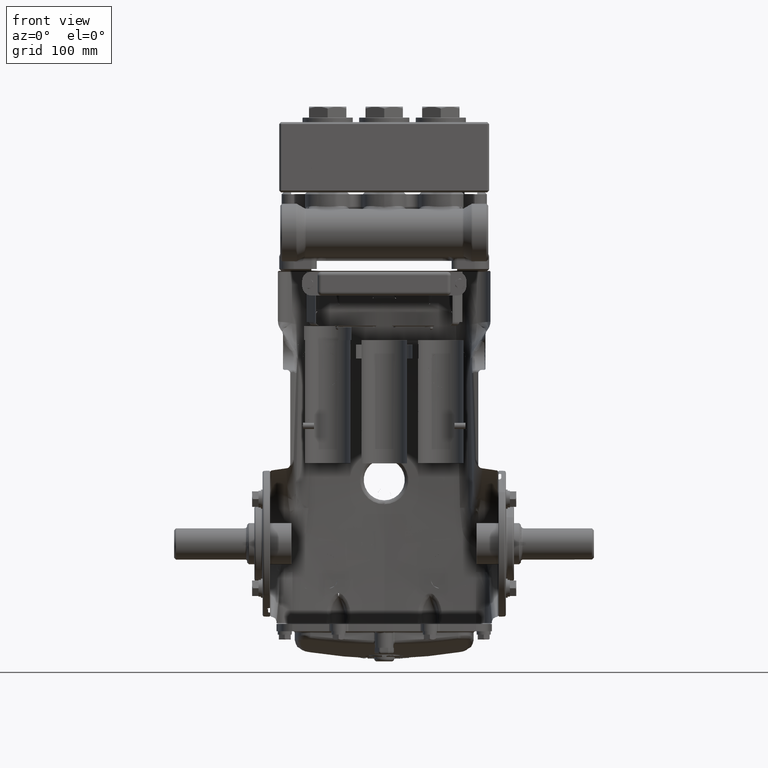
[diagram: clean part render]
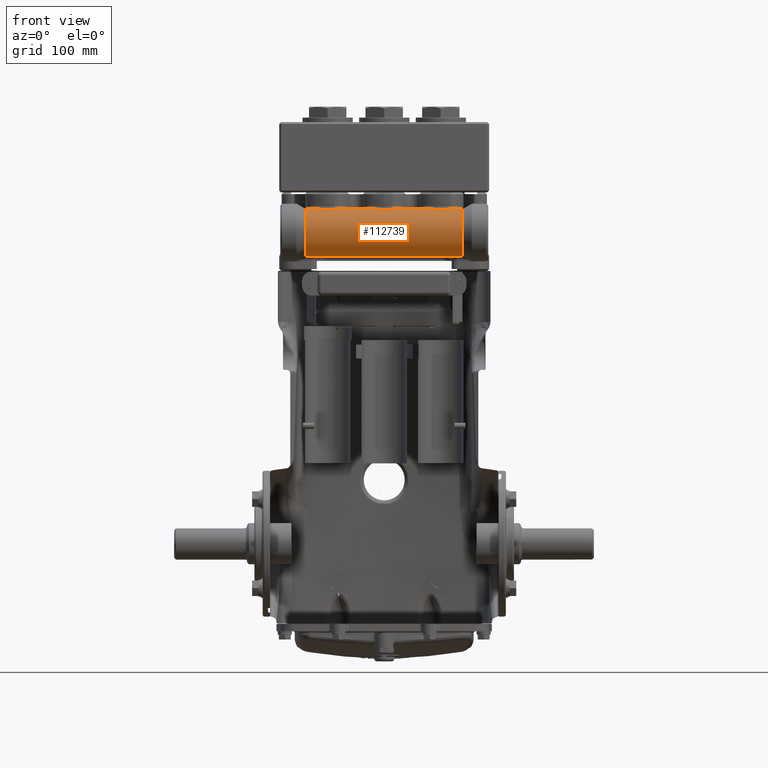
[diagram: same view with one face highlighted and labeled with its STEP entity id]
A machine part, front view. The second image highlights one B-rep face of the part: STEP entity #112739.
In plain terms, the highlighted cylindrical surface (edge-blend (fillet) strip) has radius 26 mm, axis along (1, 0, 0).
Its self-contained STEP definition (entity closure, byte-faithful):
#1110 = CARTESIAN_POINT ( 'NONE',  ( -1.224750035961767791, -2.438224173086714242, 14.28600753753522312 ) ) ;
#1690 = CARTESIAN_POINT ( 'NONE',  ( -1.392745476830968832, -2.529004350186878636, 14.33811303274630156 ) ) ;
#2241 = CARTESIAN_POINT ( 'NONE',  ( -1.762139958718526689, -2.994705336898281889, 14.44889535709846484 ) ) ;
#2495 = CARTESIAN_POINT ( 'NONE',  ( 0.5488131802553992689, -3.072909755404113596, 14.44567953289339002 ) ) ;
#2801 = CARTESIAN_POINT ( 'NONE',  ( -2.523119383381955849, -3.201164740332664849, 14.42724901606461430 ) ) ;
#3054 = CARTESIAN_POINT ( 'NONE',  ( 0.9632434997090216777, -2.696701361509685757, 14.40543878414368528 ) ) ;
#3367 = CARTESIAN_POINT ( 'NONE',  ( -3.164982382948822615, -2.961115927815201498, 14.44843370206043609 ) ) ;
#3617 = CARTESIAN_POINT ( 'NONE',  ( 1.102829510605237928, -2.473063282394071472, 14.30748209213322752 ) ) ;
#3702 = EDGE_CURVE ( 'NONE', #91047, #35622, #58872, .T. ) ;
#4179 = CARTESIAN_POINT ( 'NONE',  ( 1.298563175793137736, -2.452629944804456841, 14.29512303758777136 ) ) ;
#4742 = CARTESIAN_POINT ( 'NONE',  ( 1.413793404547088350, -2.574525015069976330, 14.35981785241711783 ) ) ;
#5311 = CARTESIAN_POINT ( 'NONE',  ( 1.931510046685219084, -3.092974234455978078, 14.44397878168943272 ) ) ;
#5494 = AXIS2_PLACEMENT_3D ( 'NONE', #33861, #69046, #104352 ) ;
#5879 = CARTESIAN_POINT ( 'NONE',  ( 2.779356107778421681, -3.156946018234576989, 14.43551792511931353 ) ) ;
#6451 = CARTESIAN_POINT ( 'NONE',  ( 3.347962723525526929, -2.778498657831000251, 14.42693520110794481 ) ) ;
#6467 = CARTESIAN_POINT ( 'NONE',  ( 0.0000000000000000000, -3.203909856095580100, 14.42667060802847701 ) ) ;
#7035 = CARTESIAN_POINT ( 'NONE',  ( -0.7493215939297026562, -2.940726511521727371, 14.44761886847634358 ) ) ;
#7595 = CARTESIAN_POINT ( 'NONE',  ( -1.023947578147561321, -2.581915927152862889, 14.36312639602644659 ) ) ;
#9752 = CARTESIAN_POINT ( 'NONE',  ( -1.170736290824243353, -2.443966577119395467, 14.28967860514842414 ) ) ;
#10313 = CARTESIAN_POINT ( 'NONE',  ( -1.367744346045516313, -2.497449160356584930, 14.32138789086402397 ) ) ;
#10894 = CARTESIAN_POINT ( 'NONE',  ( -1.613589198999290764, -2.869963022498621008, 14.44193352848027345 ) ) ;
#11148 = CARTESIAN_POINT ( 'NONE',  ( 0.3470717326051955820, -3.156985305777794348, 14.43563529904559317 ) ) ;
#11452 = CARTESIAN_POINT ( 'NONE',  ( -2.306175385157535729, -3.199585951982961696, 14.42770270754278172 ) ) ;
#11707 = CARTESIAN_POINT ( 'NONE',  ( 0.8884793090866481835, -2.802156249457780746, 14.43165898778683598 ) ) ;
#12009 = CARTESIAN_POINT ( 'NONE',  ( -3.057777759757153824, -3.035973287580524094, 14.44816067551082384 ) ) ;
#12254 = CARTESIAN_POINT ( 'NONE',  ( 1.057505240782311562, -2.514124458868172152, 14.33051050874809107 ) ) ;
#12591 = ORIENTED_EDGE ( 'NONE', *, *, #38957, .T. ) ;
#12817 = CARTESIAN_POINT ( 'NONE',  ( 1.257299938182209420, -2.441338663756227767, 14.28800497887823262 ) ) ;
#13380 = CARTESIAN_POINT ( 'NONE',  ( 1.402068782616597620, -2.546632716921555684, 14.34680629852294587 ) ) ;
#13411 = DIRECTION ( 'NONE',  ( 0.0000000000000000000, 0.0000000000000000000, -1.000000000000000000 ) ) ;
#13944 = CARTESIAN_POINT ( 'NONE',  ( 1.816720217836775175, -3.030578863915343923, 14.44816442550044222 ) ) ;
#14521 = CARTESIAN_POINT ( 'NONE',  ( 2.588266881271676922, -3.194987343205331065, 14.42852066006803646 ) ) ;
#15082 = CARTESIAN_POINT ( 'NONE',  ( 3.231684298675554068, -2.905147404648150022, 14.44550764316274538 ) ) ;
#15675 = CARTESIAN_POINT ( 'NONE',  ( -0.6063617544307126073, -3.041158706254087463, 14.44770828912713334 ) ) ;
#16248 = CARTESIAN_POINT ( 'NONE',  ( -0.9947355276323851525, -2.642039462858742915, 14.38728542416328082 ) ) ;
#17890 = CARTESIAN_POINT ( 'NONE',  ( -3.372829644924324022, -2.743333000702158131, 14.41812391062550347 ) ) ;
#18384 = CARTESIAN_POINT ( 'NONE',  ( -1.130177275315354279, -2.457779076810858943, 14.29829932257568537 ) ) ;
#18960 = CARTESIAN_POINT ( 'NONE',  ( -1.327245032152549520, -2.466298467446557119, 14.30346230889196413 ) ) ;
#19530 = CARTESIAN_POINT ( 'NONE',  ( -1.456172790164167674, -2.666855775660966543, 14.39907039445945003 ) ) ;
#19795 = CARTESIAN_POINT ( 'NONE',  ( 0.08792247874438786914, -3.201557195373263998, 14.42717671050553641 ) ) ;
#20102 = CARTESIAN_POINT ( 'NONE',  ( -2.051996479377665494, -3.141049179896874044, 14.43800536758448594 ) ) ;
#20236 = DIRECTION ( 'NONE',  ( 0.0000000000000000000, -1.067522139062649685E-15, 1.000000000000000000 ) ) ;
#20359 = CARTESIAN_POINT ( 'NONE',  ( 0.7987899432283530610, -2.896987876359246261, 14.44449545914397426 ) ) ;
#20661 = CARTESIAN_POINT ( 'NONE',  ( -2.902887244773027398, -3.114048333381713274, 14.44164623615207077 ) ) ;
#20916 = CARTESIAN_POINT ( 'NONE',  ( 1.033856893815096933, -2.558594652386579682, 14.35249351502407222 ) ) ;
#21463 = CARTESIAN_POINT ( 'NONE',  ( 1.203061127379871253, -2.438896899008384356, 14.28644004180351423 ) ) ;
#22022 = CARTESIAN_POINT ( 'NONE',  ( 1.387241018392690206, -2.520699608530673430, 14.33384351126877476 ) ) ;
#22062 = CYLINDRICAL_SURFACE ( 'NONE', #43593, 1.023622047244095334 ) ;
#22606 = CARTESIAN_POINT ( 'NONE',  ( 1.709720017371413103, -2.956383475123208093, 14.44851367767017258 ) ) ;
#23172 = CARTESIAN_POINT ( 'NONE',  ( 2.501245188955166121, -3.202464847456474750, 14.42697536519890278 ) ) ;
#23228 = CIRCLE ( 'NONE', #87836, 1.023622047244095334 ) ;
#23296 = CARTESIAN_POINT ( 'NONE',  ( -3.372829644924324022, -2.992125984251973847, 13.42519685039370003 ) ) ;
#23746 = CARTESIAN_POINT ( 'NONE',  ( 3.129985374719591817, -2.987431697198415836, 14.44889272411700176 ) ) ;
#24306 = CARTESIAN_POINT ( 'NONE',  ( 3.372829644924324022, -2.992125984251974735, 14.44881889763779625 ) ) ;
#24327 = CARTESIAN_POINT ( 'NONE',  ( -0.5291050891334558859, -3.082812570212660752, 14.44483663170348287 ) ) ;
#24891 = EDGE_CURVE ( 'NONE', #58924, #91047, #103778, .T. ) ;
#24892 = CARTESIAN_POINT ( 'NONE',  ( -0.9398251910465786896, -2.732606826391485555, 14.41555020304502754 ) ) ;
#27058 = CARTESIAN_POINT ( 'NONE',  ( -1.086264197188575586, -2.485453203045027148, 14.31465512880557966 ) ) ;
#27621 = CARTESIAN_POINT ( 'NONE',  ( -1.288566711587185720, -2.449096935547703247, 14.29291377502000060 ) ) ;
#28202 = CARTESIAN_POINT ( 'NONE',  ( -1.407902867825798321, -2.560562375778543398, 14.35341081832662447 ) ) ;
#28543 = DIRECTION ( 'NONE',  ( 1.000000000000000000, -0.0000000000000000000, -0.0000000000000000000 ) ) ;
#28768 = CARTESIAN_POINT ( 'NONE',  ( -1.892550977865406381, -3.073976780054737290, 14.44576598726254701 ) ) ;
#29026 = CARTESIAN_POINT ( 'NONE',  ( 0.6979019443465449557, -2.981678378771960514, 14.44913010806025255 ) ) ;
#29324 = CARTESIAN_POINT ( 'NONE',  ( -2.695307960543031012, -3.177820153362491240, 14.43189044488762107 ) ) ;
#29579 = CARTESIAN_POINT ( 'NONE',  ( 1.017565976525985683, -2.595848302988955858, 14.36905391292039269 ) ) ;
#29881 = CARTESIAN_POINT ( 'NONE',  ( -3.320910558566367854, -2.811876020899895412, 14.43333182254591840 ) ) ;
#30135 = CARTESIAN_POINT ( 'NONE',  ( 1.160323562658088781, -2.446662567767138974, 14.29138864007830989 ) ) ;
#30236 = EDGE_CURVE ( 'NONE', #68037, #68107, #41797, .T. ) ;
#30500 = EDGE_CURVE ( 'NONE', #58924, #106629, #61249, .T. ) ;
#30689 = CARTESIAN_POINT ( 'NONE',  ( 1.352656280618820039, -2.483782230740774644, 14.31370693440212882 ) ) ;
#31252 = CARTESIAN_POINT ( 'NONE',  ( 1.583879470559962366, -2.838512698983674198, 14.43780017292151996 ) ) ;
#31832 = CARTESIAN_POINT ( 'NONE',  ( 2.178004310445090130, -3.176032197834753656, 14.43219460821944722 ) ) ;
#32397 = CARTESIAN_POINT ( 'NONE',  ( 3.020278356798601571, -3.057673702080660139, 14.44690566706256973 ) ) ;
#32982 = CARTESIAN_POINT ( 'NONE',  ( -0.2188524925182083469, -3.185075906583179961, 14.43051421957495783 ) ) ;
#33551 = CARTESIAN_POINT ( 'NONE',  ( -0.8602442029488021058, -2.835027223197791102, 14.43717998284209614 ) ) ;
#33861 = CARTESIAN_POINT ( 'NONE',  ( 3.372829644924324022, -2.992125984251973847, 13.42519685039370003 ) ) ;
#34120 = CARTESIAN_POINT ( 'NONE',  ( -1.045962652270114868, -2.530908640154816869, 14.33925172178862439 ) ) ;
#35622 = VERTEX_POINT ( 'NONE', #24306 ) ;
#36284 = CARTESIAN_POINT ( 'NONE',  ( -1.235597776719379981, -2.438706113112504514, 14.28631878439947478 ) ) ;
#36855 = CARTESIAN_POINT ( 'NONE',  ( -1.399879171403583422, -2.542140314129480938, 14.34461996809992534 ) ) ;
#37426 = CARTESIAN_POINT ( 'NONE',  ( -1.780045196653176509, -3.006991268781792126, 14.44877894626585224 ) ) ;
#37680 = CARTESIAN_POINT ( 'NONE',  ( 0.5874141041629356019, -3.052095054381414041, 14.44711398675610781 ) ) ;
#37984 = CARTESIAN_POINT ( 'NONE',  ( -2.566635660627479609, -3.197423503268010503, 14.42802219558367050 ) ) ;
#38243 = CARTESIAN_POINT ( 'NONE',  ( 0.9742156385260171136, -2.678575255638935282, 14.39980494436041702 ) ) ;
#38546 = CARTESIAN_POINT ( 'NONE',  ( -3.182063912697919772, -2.947432021988487971, 14.44794015554316680 ) ) ;
#38797 = CARTESIAN_POINT ( 'NONE',  ( 1.111606127074344696, -2.467529381258308341, 14.30419227048965958 ) ) ;
#38957 = EDGE_CURVE ( 'NONE', #106629, #108750, #23228, .T. ) ;
#39359 = CARTESIAN_POINT ( 'NONE',  ( 1.317919109970155045, -2.461230961520086691, 14.30039855433632212 ) ) ;
#39946 = CARTESIAN_POINT ( 'NONE',  ( 1.417883865505817464, -2.583795321968324732, 14.36390266582180608 ) ) ;
#40516 = CARTESIAN_POINT ( 'NONE',  ( 2.011233665830897355, -3.126508467930788626, 14.44009996950615182 ) ) ;
#40518 = CIRCLE ( 'NONE', #5494, 1.023622047244095334 ) ;
#41090 = CARTESIAN_POINT ( 'NONE',  ( 2.820882793528002974, -3.144257890370580455, 14.43756550664822669 ) ) ;
#41651 = CARTESIAN_POINT ( 'NONE',  ( 3.372829644924324022, -2.743333000702158131, 14.41812391062550347 ) ) ;
#41665 = CARTESIAN_POINT ( 'NONE',  ( -0.04406172151318323016, -3.203909856095580988, 14.42667060802848233 ) ) ;
#41797 = LINE ( 'NONE', #76943, #112921 ) ;
#42231 = CARTESIAN_POINT ( 'NONE',  ( -0.7661279068560705729, -2.926481476910151702, 14.44681894883788154 ) ) ;
#42803 = CARTESIAN_POINT ( 'NONE',  ( -1.029944212129106917, -2.567929744938093783, 14.35680088135081967 ) ) ;
#43406 = ORIENTED_EDGE ( 'NONE', *, *, #30236, .T. ) ;
#43593 = AXIS2_PLACEMENT_3D ( 'NONE', #57241, #92566, #13411 ) ;
#44953 = CARTESIAN_POINT ( 'NONE',  ( -1.192130817914867080, -2.440067443322223806, 14.28719383839206891 ) ) ;
#45522 = CARTESIAN_POINT ( 'NONE',  ( -1.374771894506268577, -2.504944114283792711, 14.32549424993423237 ) ) ;
#46090 = CARTESIAN_POINT ( 'NONE',  ( -1.676498238489965376, -2.928886312410759807, 14.44729176071087551 ) ) ;
#46343 = CARTESIAN_POINT ( 'NONE',  ( 0.4296336755646519845, -3.129291744169332201, 14.44027495984443377 ) ) ;
#46649 = CARTESIAN_POINT ( 'NONE',  ( -2.392421147142306914, -3.206041762892475777, 14.42622166885597323 ) ) ;
#46897 = CARTESIAN_POINT ( 'NONE',  ( 0.9273834632848217963, -2.750363958070084713, 14.42001659684805581 ) ) ;
#47199 = CARTESIAN_POINT ( 'NONE',  ( -3.112166531739868347, -2.999996381871997908, 14.44885891471048822 ) ) ;
#47370 = CARTESIAN_POINT ( 'NONE',  ( 0.0000000000000000000, -3.203909856095580100, 14.42667060802847701 ) ) ;
#47448 = CARTESIAN_POINT ( 'NONE',  ( 1.078542374105145418, -2.492272238273208984, 14.31851503217564492 ) ) ;
#48012 = CARTESIAN_POINT ( 'NONE',  ( 1.267969249578819735, -2.443456643992555133, 14.28935838857905694 ) ) ;
#48579 = CARTESIAN_POINT ( 'NONE',  ( 1.406052413757419961, -2.555859440886615097, 14.35120966307928292 ) ) ;
#49142 = CARTESIAN_POINT ( 'NONE',  ( 1.835536608594182217, -3.041902752933232534, 14.44766400095575420 ) ) ;
#49185 = EDGE_CURVE ( 'NONE', #108750, #68037, #102548, .T. ) ;
#49715 = CARTESIAN_POINT ( 'NONE',  ( 2.652788214902094488, -3.186013505273903590, 14.43030725947455117 ) ) ;
#50283 = CARTESIAN_POINT ( 'NONE',  ( 3.262772052194764072, -2.875200499202896776, 14.44262232791567691 ) ) ;
#50864 = CARTESIAN_POINT ( 'NONE',  ( -0.6621363260856938382, -3.006746581080935066, 14.44897189990721387 ) ) ;
#50874 = CARTESIAN_POINT ( 'NONE',  ( -3.372829644924324022, -2.992125984251974735, 14.44881889763779625 ) ) ;
#51437 = CARTESIAN_POINT ( 'NONE',  ( -1.004283197333284416, -2.623629684095146075, 14.38039987098826700 ) ) ;
#52088 = CARTESIAN_POINT ( 'NONE',  ( -3.372829644924324022, -2.992125984251973847, 12.40157480314960736 ) ) ;
#52689 = AXIS2_PLACEMENT_3D ( 'NONE', #64086, #99383, #20236 ) ;
#53428 = ORIENTED_EDGE ( 'NONE', *, *, #30500, .T. ) ;
#53572 = CARTESIAN_POINT ( 'NONE',  ( -1.140056622472941150, -2.453545766557934993, 14.29568516412857093 ) ) ;
#54146 = CARTESIAN_POINT ( 'NONE',  ( -1.344562920260350181, -2.477553737868745110, 14.31010373604497410 ) ) ;
#54707 = CARTESIAN_POINT ( 'NONE',  ( -1.500622986820208560, -2.738038971074281847, 14.41912019942171419 ) ) ;
#54962 = CARTESIAN_POINT ( 'NONE',  ( 0.1752452786362012904, -3.192164113055663499, 14.42909416550425306 ) ) ;
#55265 = CARTESIAN_POINT ( 'NONE',  ( -2.135296593774373530, -3.165805088541008061, 14.43405500664196062 ) ) ;
#55527 = CARTESIAN_POINT ( 'NONE',  ( 0.8145691455730238451, -2.881812812228580878, 14.44297877499861471 ) ) ;
#55833 = CARTESIAN_POINT ( 'NONE',  ( -2.942878641965528175, -3.096695082740985594, 14.44365191224603073 ) ) ;
#56085 = CARTESIAN_POINT ( 'NONE',  ( 1.035689114228423691, -2.553884803707387352, 14.35027670719249393 ) ) ;
#56642 = CARTESIAN_POINT ( 'NONE',  ( 1.224750035961767791, -2.438224173086714242, 14.28600753753522312 ) ) ;
#57207 = CARTESIAN_POINT ( 'NONE',  ( 1.392745476830968832, -2.529004350186878636, 14.33811303274630156 ) ) ;
#57241 = CARTESIAN_POINT ( 'NONE',  ( -4.409448818897637956, -2.992125984251973847, 13.42519685039370003 ) ) ;
#57772 = CARTESIAN_POINT ( 'NONE',  ( 1.762139958718526689, -2.994705336898281889, 14.44889535709846484 ) ) ;
#57809 = EDGE_CURVE ( 'NONE', #35622, #68107, #40518, .T. ) ;
#58328 = CARTESIAN_POINT ( 'NONE',  ( 2.523119383381955849, -3.201164740332664849, 14.42724901606461430 ) ) ;
#58462 = DIRECTION ( 'NONE',  ( 1.000000000000000000, 0.0000000000000000000, 0.0000000000000000000 ) ) ;
#58872 = CIRCLE ( 'NONE', #108768, 1.023622047244095334 ) ;
#58900 = CARTESIAN_POINT ( 'NONE',  ( 3.164982382948822615, -2.961115927815201498, 14.44843370206043609 ) ) ;
#58924 = VERTEX_POINT ( 'NONE', #47370 ) ;
#59497 = CARTESIAN_POINT ( 'NONE',  ( -0.5488131802553992689, -3.072909755404113596, 14.44567953289339002 ) ) ;
#60070 = CARTESIAN_POINT ( 'NONE',  ( -0.9632434997090216777, -2.696701361509685757, 14.40543878414368528 ) ) ;
#61249 = B_SPLINE_CURVE_WITH_KNOTS ( 'NONE', 3,
 ( #6467, #41665, #76812, #112173, #32982, #68167, #103467, #24327, #59497, #94815, #15675, #50864, #86149, #7035, #42231, #77377, #112740, #33551, #68733, #104040, #24892, #60070, #95391, #16248, #51437, #86716, #7595, #42803, #77963, #113317, #34120, #69303, #104616, #27058, #62232, #97544, #18384, #53572, #88886, #9752, #44953, #80119, #1110, #36284, #71450, #106771, #27621, #62803, #98123, #18960, #54146, #89466, #10313, #45522, #80712, #1690, #36855, #72018, #107339, #28202, #63392, #98685, #19530, #54707, #90038, #10894, #46090, #81284, #2241, #37426, #72590, #107907, #28768, #63957, #99250, #20102, #55265, #90602, #11452, #46649, #81850, #2801, #37984, #73146, #108471, #29324, #64505, #99817, #20661, #55833, #91164, #12009, #47199, #82418, #3367, #38546, #73690, #109019, #29881, #65062, #100378 ),
 .UNSPECIFIED., .F., .F.,
 ( 4, 2, 2, 2, 2, 2, 2, 2, 2, 2, 2, 2, 2, 1, 2, 2, 2, 2, 2, 2, 2, 2, 2, 2, 2, 2, 2, 2, 2, 2, 2, 2, 2, 2, 2, 2, 2, 2, 2, 2, 2, 2, 2, 2, 2, 2, 2, 2, 2, 2, 4 ),
 ( 3.529215890205205369E-29, 0.003345855121714097144, 0.006691710243428194288, 0.01338342048685639378, 0.01505634804771344842, 0.01672927560857050480, 0.02007513073028458633, 0.02174805829114161149, 0.02342098585199863664, 0.02676684097371268001, 0.02843976853456969475, 0.03011269609542670256, 0.03178562365628370689, 0.03262208743671219519, 0.03304031932692642198, 0.03345855121714064878, 0.03513147877799732005, 0.03596794255842567650, 0.03680440633885402602, 0.03764087011928238247, 0.03847733389971073198, 0.03931379768013908149, 0.04015026146056743100, 0.04098672524099578052, 0.04182318902142413697, 0.04265965280185248648, 0.04349611658228084293, 0.04433258036270919245, 0.04516904414313754890, 0.04558727603335171324, 0.04600550792356589147, 0.04684197170399431037, 0.05353368194742112729, 0.05687953706913453922, 0.06022539219084793727, 0.06189831975170464323, 0.06357124731256136307, 0.06691710243427477500, 0.07026295755598820081, 0.07360881267770161274, 0.08030052292112842272, 0.08197345048198513562, 0.08364637804284186240, 0.08699223316455532984, 0.09033808828626879728, 0.09368394340798225084, 0.09702979852969571828, 0.09870272609055248669, 0.1003756536514092412, 0.1037215087731227919, 0.1070673638948363149 ),
 .UNSPECIFIED. ) ;
#62232 = CARTESIAN_POINT ( 'NONE',  ( -1.102829510605237928, -2.473063282394071472, 14.30748209213322752 ) ) ;
#62803 = CARTESIAN_POINT ( 'NONE',  ( -1.298563175793137736, -2.452629944804456841, 14.29512303758777136 ) ) ;
#63392 = CARTESIAN_POINT ( 'NONE',  ( -1.413793404547088350, -2.574525015069976330, 14.35981785241711783 ) ) ;
#63656 = CARTESIAN_POINT ( 'NONE',  ( 0.0000000000000000000, -3.203909856095580100, 14.42667060802847701 ) ) ;
#63730 = DIRECTION ( 'NONE',  ( 0.0000000000000000000, 3.202566417187948937E-14, 1.000000000000000000 ) ) ;
#63957 = CARTESIAN_POINT ( 'NONE',  ( -1.931510046685219084, -3.092974234455978078, 14.44397878168943272 ) ) ;
#64086 = CARTESIAN_POINT ( 'NONE',  ( -3.372829644924324022, -2.992125984251973847, 13.42519685039370003 ) ) ;
#64213 = CARTESIAN_POINT ( 'NONE',  ( 0.7493215939297026562, -2.940726511521727371, 14.44761886847634358 ) ) ;
#64505 = CARTESIAN_POINT ( 'NONE',  ( -2.779356107778421681, -3.156946018234576989, 14.43551792511931353 ) ) ;
#64754 = CARTESIAN_POINT ( 'NONE',  ( 1.023947578147561321, -2.581915927152862889, 14.36312639602644659 ) ) ;
#65062 = CARTESIAN_POINT ( 'NONE',  ( -3.347962723525526929, -2.778498657831000251, 14.42693520110794481 ) ) ;
#65318 = CARTESIAN_POINT ( 'NONE',  ( 1.170736290824243353, -2.443966577119395467, 14.28967860514842414 ) ) ;
#65585 = CARTESIAN_POINT ( 'NONE',  ( 3.372829644924324022, -2.743333000702158131, 14.41812391062550347 ) ) ;
#65870 = CARTESIAN_POINT ( 'NONE',  ( 1.367744346045516313, -2.497449160356584930, 14.32138789086402397 ) ) ;
#66435 = CARTESIAN_POINT ( 'NONE',  ( 1.613589198999290764, -2.869963022498621008, 14.44193352848027345 ) ) ;
#67009 = CARTESIAN_POINT ( 'NONE',  ( 2.306175385157535729, -3.199585951982961696, 14.42770270754278172 ) ) ;
#67578 = CARTESIAN_POINT ( 'NONE',  ( 3.057777759757153824, -3.035973287580524094, 14.44816067551082384 ) ) ;
#68037 = VERTEX_POINT ( 'NONE', #52088 ) ;
#68107 = VERTEX_POINT ( 'NONE', #79188 ) ;
#68167 = CARTESIAN_POINT ( 'NONE',  ( -0.3470717326051955820, -3.156985305777794348, 14.43563529904559317 ) ) ;
#68733 = CARTESIAN_POINT ( 'NONE',  ( -0.8884793090866481835, -2.802156249457780746, 14.43165898778683598 ) ) ;
#69046 = DIRECTION ( 'NONE',  ( 1.000000000000000000, -0.0000000000000000000, -0.0000000000000000000 ) ) ;
#69303 = CARTESIAN_POINT ( 'NONE',  ( -1.057505240782311562, -2.514124458868172152, 14.33051050874809107 ) ) ;
#71109 = ORIENTED_EDGE ( 'NONE', *, *, #57809, .F. ) ;
#71450 = CARTESIAN_POINT ( 'NONE',  ( -1.257299938182209420, -2.441338663756227767, 14.28800497887823262 ) ) ;
#72018 = CARTESIAN_POINT ( 'NONE',  ( -1.402068782616597620, -2.546632716921555684, 14.34680629852294587 ) ) ;
#72590 = CARTESIAN_POINT ( 'NONE',  ( -1.816720217836775175, -3.030578863915343923, 14.44816442550044222 ) ) ;
#72838 = CARTESIAN_POINT ( 'NONE',  ( 0.6063617544307126073, -3.041158706254087463, 14.44770828912713334 ) ) ;
#73146 = CARTESIAN_POINT ( 'NONE',  ( -2.588266881271676922, -3.194987343205331065, 14.42852066006803646 ) ) ;
#73396 = CARTESIAN_POINT ( 'NONE',  ( 0.9947355276323851525, -2.642039462858742915, 14.38728542416328082 ) ) ;
#73690 = CARTESIAN_POINT ( 'NONE',  ( -3.231684298675554068, -2.905147404648150022, 14.44550764316274538 ) ) ;
#73944 = CARTESIAN_POINT ( 'NONE',  ( 1.130177275315354279, -2.457779076810858943, 14.29829932257568537 ) ) ;
#74503 = CARTESIAN_POINT ( 'NONE',  ( 1.327245032152549520, -2.466298467446557119, 14.30346230889196413 ) ) ;
#75069 = CARTESIAN_POINT ( 'NONE',  ( 1.456172790164167674, -2.666855775660966543, 14.39907039445945003 ) ) ;
#75640 = CARTESIAN_POINT ( 'NONE',  ( 2.051996479377665494, -3.141049179896874044, 14.43800536758448594 ) ) ;
#76218 = CARTESIAN_POINT ( 'NONE',  ( 2.902887244773027398, -3.114048333381713274, 14.44164623615207077 ) ) ;
#76812 = CARTESIAN_POINT ( 'NONE',  ( -0.08792247874438786914, -3.201557195373263998, 14.42717671050553641 ) ) ;
#76943 = CARTESIAN_POINT ( 'NONE',  ( -4.409448818897637956, -2.992125984251973847, 12.40157480314960736 ) ) ;
#77377 = CARTESIAN_POINT ( 'NONE',  ( -0.7987899432283530610, -2.896987876359246261, 14.44449545914397426 ) ) ;
#77963 = CARTESIAN_POINT ( 'NONE',  ( -1.033856893815096933, -2.558594652386579682, 14.35249351502407222 ) ) ;
#79188 = CARTESIAN_POINT ( 'NONE',  ( 3.372829644924324022, -2.992125984251973847, 12.40157480314960736 ) ) ;
#80119 = CARTESIAN_POINT ( 'NONE',  ( -1.203061127379871253, -2.438896899008384356, 14.28644004180351423 ) ) ;
#80712 = CARTESIAN_POINT ( 'NONE',  ( -1.387241018392690206, -2.520699608530673430, 14.33384351126877476 ) ) ;
#81054 = CARTESIAN_POINT ( 'NONE',  ( 3.372829644924324022, -2.992125984251973847, 13.42519685039370003 ) ) ;
#81284 = CARTESIAN_POINT ( 'NONE',  ( -1.709720017371413103, -2.956383475123208093, 14.44851367767017258 ) ) ;
#81543 = CARTESIAN_POINT ( 'NONE',  ( 0.5291050891334558859, -3.082812570212660752, 14.44483663170348287 ) ) ;
#81850 = CARTESIAN_POINT ( 'NONE',  ( -2.501245188955166121, -3.202464847456474750, 14.42697536519890278 ) ) ;
#82104 = CARTESIAN_POINT ( 'NONE',  ( 0.9398251910465786896, -2.732606826391485555, 14.41555020304502754 ) ) ;
#82418 = CARTESIAN_POINT ( 'NONE',  ( -3.129985374719591817, -2.987431697198415836, 14.44889272411700176 ) ) ;
#82674 = CARTESIAN_POINT ( 'NONE',  ( 1.086264197188575586, -2.485453203045027148, 14.31465512880557966 ) ) ;
#83236 = CARTESIAN_POINT ( 'NONE',  ( 1.288566711587185720, -2.449096935547703247, 14.29291377502000060 ) ) ;
#83812 = CARTESIAN_POINT ( 'NONE',  ( 1.407902867825798321, -2.560562375778543398, 14.35341081832662447 ) ) ;
#84399 = CARTESIAN_POINT ( 'NONE',  ( 1.892550977865406381, -3.073976780054737290, 14.44576598726254701 ) ) ;
#84972 = CARTESIAN_POINT ( 'NONE',  ( 2.695307960543031012, -3.177820153362491240, 14.43189044488762107 ) ) ;
#84995 = ORIENTED_EDGE ( 'NONE', *, *, #24891, .F. ) ;
#85551 = CARTESIAN_POINT ( 'NONE',  ( 3.320910558566367854, -2.811876020899895412, 14.43333182254591840 ) ) ;
#86149 = CARTESIAN_POINT ( 'NONE',  ( -0.6979019443465449557, -2.981678378771960514, 14.44913010806025255 ) ) ;
#86716 = CARTESIAN_POINT ( 'NONE',  ( -1.017565976525985683, -2.595848302988955858, 14.36905391292039269 ) ) ;
#87836 = AXIS2_PLACEMENT_3D ( 'NONE', #23296, #58462, #93794 ) ;
#88886 = CARTESIAN_POINT ( 'NONE',  ( -1.160323562658088781, -2.446662567767138974, 14.29138864007830989 ) ) ;
#89466 = CARTESIAN_POINT ( 'NONE',  ( -1.352656280618820039, -2.483782230740774644, 14.31370693440212882 ) ) ;
#90038 = CARTESIAN_POINT ( 'NONE',  ( -1.583879470559962366, -2.838512698983674198, 14.43780017292151996 ) ) ;
#90291 = CARTESIAN_POINT ( 'NONE',  ( 0.2188524925182083469, -3.185075906583179961, 14.43051421957495783 ) ) ;
#90602 = CARTESIAN_POINT ( 'NONE',  ( -2.178004310445090130, -3.176032197834753656, 14.43219460821944722 ) ) ;
#90861 = CARTESIAN_POINT ( 'NONE',  ( 0.8602442029488021058, -2.835027223197791102, 14.43717998284209614 ) ) ;
#91047 = VERTEX_POINT ( 'NONE', #65585 ) ;
#91164 = CARTESIAN_POINT ( 'NONE',  ( -3.020278356798601571, -3.057673702080660139, 14.44690566706256973 ) ) ;
#91415 = CARTESIAN_POINT ( 'NONE',  ( 1.045962652270114868, -2.530908640154816869, 14.33925172178862439 ) ) ;
#91971 = CARTESIAN_POINT ( 'NONE',  ( 1.235597776719379981, -2.438706113112504514, 14.28631878439947478 ) ) ;
#92529 = CARTESIAN_POINT ( 'NONE',  ( 1.399879171403583422, -2.542140314129480938, 14.34461996809992534 ) ) ;
#92566 = DIRECTION ( 'NONE',  ( 1.000000000000000000, 0.0000000000000000000, 0.0000000000000000000 ) ) ;
#93104 = CARTESIAN_POINT ( 'NONE',  ( 1.780045196653176509, -3.006991268781792126, 14.44877894626585224 ) ) ;
#93672 = CARTESIAN_POINT ( 'NONE',  ( 2.566635660627479609, -3.197423503268010503, 14.42802219558367050 ) ) ;
#93794 = DIRECTION ( 'NONE',  ( 0.0000000000000000000, 3.202566417187948937E-14, 1.000000000000000000 ) ) ;
#94236 = CARTESIAN_POINT ( 'NONE',  ( 3.182063912697919772, -2.947432021988487971, 14.44794015554316680 ) ) ;
#94815 = CARTESIAN_POINT ( 'NONE',  ( -0.5874141041629356019, -3.052095054381414041, 14.44711398675610781 ) ) ;
#95391 = CARTESIAN_POINT ( 'NONE',  ( -0.9742156385260171136, -2.678575255638935282, 14.39980494436041702 ) ) ;
#97544 = CARTESIAN_POINT ( 'NONE',  ( -1.111606127074344696, -2.467529381258308341, 14.30419227048965958 ) ) ;
#98123 = CARTESIAN_POINT ( 'NONE',  ( -1.317919109970155045, -2.461230961520086691, 14.30039855433632212 ) ) ;
#98685 = CARTESIAN_POINT ( 'NONE',  ( -1.417883865505817464, -2.583795321968324732, 14.36390266582180608 ) ) ;
#98943 = CARTESIAN_POINT ( 'NONE',  ( 0.04406172151318323016, -3.203909856095580988, 14.42667060802848233 ) ) ;
#99250 = CARTESIAN_POINT ( 'NONE',  ( -2.011233665830897355, -3.126508467930788626, 14.44009996950615182 ) ) ;
#99383 = DIRECTION ( 'NONE',  ( 1.000000000000000000, 0.0000000000000000000, 0.0000000000000000000 ) ) ;
#99509 = CARTESIAN_POINT ( 'NONE',  ( 0.7661279068560705729, -2.926481476910151702, 14.44681894883788154 ) ) ;
#99817 = CARTESIAN_POINT ( 'NONE',  ( -2.820882793528002974, -3.144257890370580455, 14.43756550664822669 ) ) ;
#100072 = CARTESIAN_POINT ( 'NONE',  ( 1.029944212129106917, -2.567929744938093783, 14.35680088135081967 ) ) ;
#100378 = CARTESIAN_POINT ( 'NONE',  ( -3.372829644924324022, -2.743333000702158131, 14.41812391062550347 ) ) ;
#100630 = CARTESIAN_POINT ( 'NONE',  ( 1.192130817914867080, -2.440067443322223806, 14.28719383839206891 ) ) ;
#101185 = CARTESIAN_POINT ( 'NONE',  ( 1.374771894506268577, -2.504944114283792711, 14.32549424993423237 ) ) ;
#101220 = FACE_OUTER_BOUND ( 'NONE', #102758, .T. ) ;
#101753 = CARTESIAN_POINT ( 'NONE',  ( 1.676498238489965376, -2.928886312410759807, 14.44729176071087551 ) ) ;
#102328 = CARTESIAN_POINT ( 'NONE',  ( 2.392421147142306914, -3.206041762892475777, 14.42622166885597323 ) ) ;
#102548 = CIRCLE ( 'NONE', #52689, 1.023622047244095334 ) ;
#102758 = EDGE_LOOP ( 'NONE', ( #43406, #71109, #110033, #84995, #53428, #12591, #113353 ) ) ;
#102887 = CARTESIAN_POINT ( 'NONE',  ( 3.112166531739868347, -2.999996381871997908, 14.44885891471048822 ) ) ;
#103467 = CARTESIAN_POINT ( 'NONE',  ( -0.4296336755646519845, -3.129291744169332201, 14.44027495984443377 ) ) ;
#103778 = B_SPLINE_CURVE_WITH_KNOTS ( 'NONE', 3,
 ( #63656, #98943, #19795, #54962, #90291, #11148, #46343, #81543, #2495, #37680, #72838, #108163, #29026, #64213, #99509, #20359, #55527, #90861, #11707, #46897, #82104, #3054, #38243, #73396, #108721, #29579, #64754, #100072, #20916, #56085, #91415, #12254, #47448, #82674, #3617, #38797, #73944, #109281, #30135, #65318, #100630, #21463, #56642, #91971, #12817, #48012, #83236, #4179, #39359, #74503, #109852, #30689, #65870, #101185, #22022, #57207, #92529, #13380, #48579, #83812, #4742, #39946, #75069, #110426, #31252, #66435, #101753, #22606, #57772, #93104, #13944, #49142, #84399, #5311, #40516, #75640, #110990, #31832, #67009, #102328, #23172, #58328, #93672, #14521, #49715, #84972, #5879, #41090, #76218, #111582, #32397, #67578, #102887, #23746, #58900, #94236, #15082, #50283, #85551, #6451, #41651 ),
 .UNSPECIFIED., .F., .F.,
 ( 4, 2, 2, 2, 2, 2, 2, 2, 2, 2, 2, 2, 2, 1, 2, 2, 2, 2, 2, 2, 2, 2, 2, 2, 2, 2, 2, 2, 2, 2, 2, 2, 2, 2, 2, 2, 2, 2, 2, 2, 2, 2, 2, 2, 2, 2, 2, 2, 2, 2, 4 ),
 ( 3.529215890205205369E-29, 0.003345855121714097144, 0.006691710243428194288, 0.01338342048685639378, 0.01505634804771344842, 0.01672927560857050480, 0.02007513073028458633, 0.02174805829114161149, 0.02342098585199863664, 0.02676684097371268001, 0.02843976853456969475, 0.03011269609542670256, 0.03178562365628370689, 0.03262208743671219519, 0.03304031932692642198, 0.03345855121714064878, 0.03513147877799732005, 0.03596794255842567650, 0.03680440633885402602, 0.03764087011928238247, 0.03847733389971073198, 0.03931379768013908149, 0.04015026146056743100, 0.04098672524099578052, 0.04182318902142413697, 0.04265965280185248648, 0.04349611658228084293, 0.04433258036270919245, 0.04516904414313754890, 0.04558727603335171324, 0.04600550792356589147, 0.04684197170399431037, 0.05353368194742112729, 0.05687953706913453922, 0.06022539219084793727, 0.06189831975170464323, 0.06357124731256136307, 0.06691710243427477500, 0.07026295755598820081, 0.07360881267770161274, 0.08030052292112842272, 0.08197345048198513562, 0.08364637804284186240, 0.08699223316455532984, 0.09033808828626879728, 0.09368394340798225084, 0.09702979852969571828, 0.09870272609055248669, 0.1003756536514092412, 0.1037215087731227919, 0.1070673638948363149 ),
 .UNSPECIFIED. ) ;
#104040 = CARTESIAN_POINT ( 'NONE',  ( -0.9273834632848217963, -2.750363958070084713, 14.42001659684805581 ) ) ;
#104352 = DIRECTION ( 'NONE',  ( 0.0000000000000000000, -1.067522139062649685E-15, 1.000000000000000000 ) ) ;
#104616 = CARTESIAN_POINT ( 'NONE',  ( -1.078542374105145418, -2.492272238273208984, 14.31851503217564492 ) ) ;
#106629 = VERTEX_POINT ( 'NONE', #17890 ) ;
#106771 = CARTESIAN_POINT ( 'NONE',  ( -1.267969249578819735, -2.443456643992555133, 14.28935838857905694 ) ) ;
#107339 = CARTESIAN_POINT ( 'NONE',  ( -1.406052413757419961, -2.555859440886615097, 14.35120966307928292 ) ) ;
#107907 = CARTESIAN_POINT ( 'NONE',  ( -1.835536608594182217, -3.041902752933232534, 14.44766400095575420 ) ) ;
#108163 = CARTESIAN_POINT ( 'NONE',  ( 0.6621363260856938382, -3.006746581080935066, 14.44897189990721387 ) ) ;
#108471 = CARTESIAN_POINT ( 'NONE',  ( -2.652788214902094488, -3.186013505273903590, 14.43030725947455117 ) ) ;
#108721 = CARTESIAN_POINT ( 'NONE',  ( 1.004283197333284416, -2.623629684095146075, 14.38039987098826700 ) ) ;
#108750 = VERTEX_POINT ( 'NONE', #50874 ) ;
#108768 = AXIS2_PLACEMENT_3D ( 'NONE', #81054, #28543, #63730 ) ;
#109019 = CARTESIAN_POINT ( 'NONE',  ( -3.262772052194764072, -2.875200499202896776, 14.44262232791567691 ) ) ;
#109281 = CARTESIAN_POINT ( 'NONE',  ( 1.140056622472941150, -2.453545766557934993, 14.29568516412857093 ) ) ;
#109852 = CARTESIAN_POINT ( 'NONE',  ( 1.344562920260350181, -2.477553737868745110, 14.31010373604497410 ) ) ;
#110033 = ORIENTED_EDGE ( 'NONE', *, *, #3702, .F. ) ;
#110426 = CARTESIAN_POINT ( 'NONE',  ( 1.500622986820208560, -2.738038971074281847, 14.41912019942171419 ) ) ;
#110990 = CARTESIAN_POINT ( 'NONE',  ( 2.135296593774373530, -3.165805088541008061, 14.43405500664196062 ) ) ;
#111582 = CARTESIAN_POINT ( 'NONE',  ( 2.942878641965528175, -3.096695082740985594, 14.44365191224603073 ) ) ;
#112173 = CARTESIAN_POINT ( 'NONE',  ( -0.1752452786362012904, -3.192164113055663499, 14.42909416550425306 ) ) ;
#112300 = DIRECTION ( 'NONE',  ( 1.000000000000000000, 0.0000000000000000000, 0.0000000000000000000 ) ) ;
#112739 = ADVANCED_FACE ( 'NONE', ( #101220 ), #22062, .T. ) ;
#112740 = CARTESIAN_POINT ( 'NONE',  ( -0.8145691455730238451, -2.881812812228580878, 14.44297877499861471 ) ) ;
#112921 = VECTOR ( 'NONE', #112300, 39.37007874015748143 ) ;
#113317 = CARTESIAN_POINT ( 'NONE',  ( -1.035689114228423691, -2.553884803707387352, 14.35027670719249393 ) ) ;
#113353 = ORIENTED_EDGE ( 'NONE', *, *, #49185, .T. ) ;